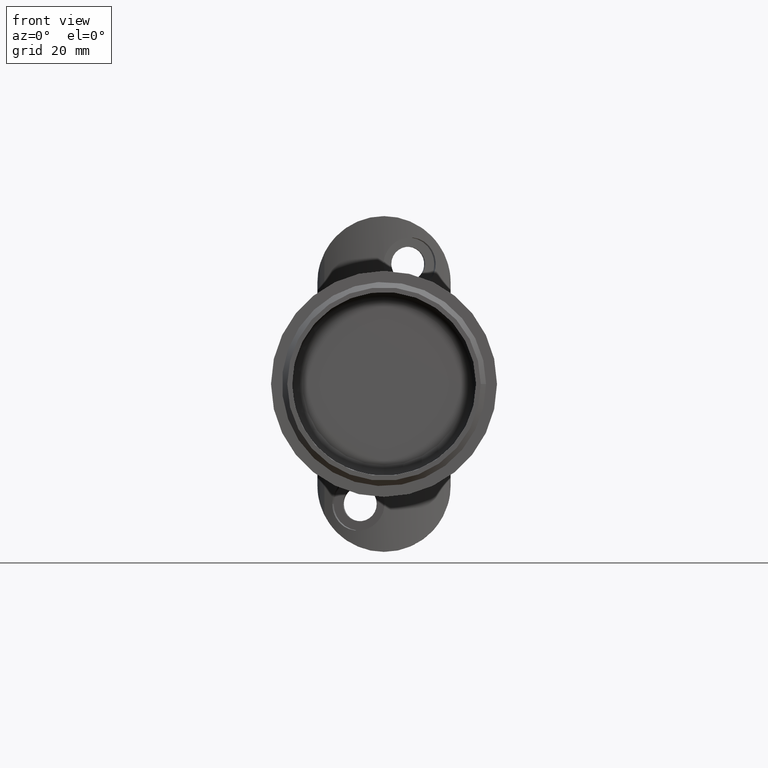
[diagram: clean part render]
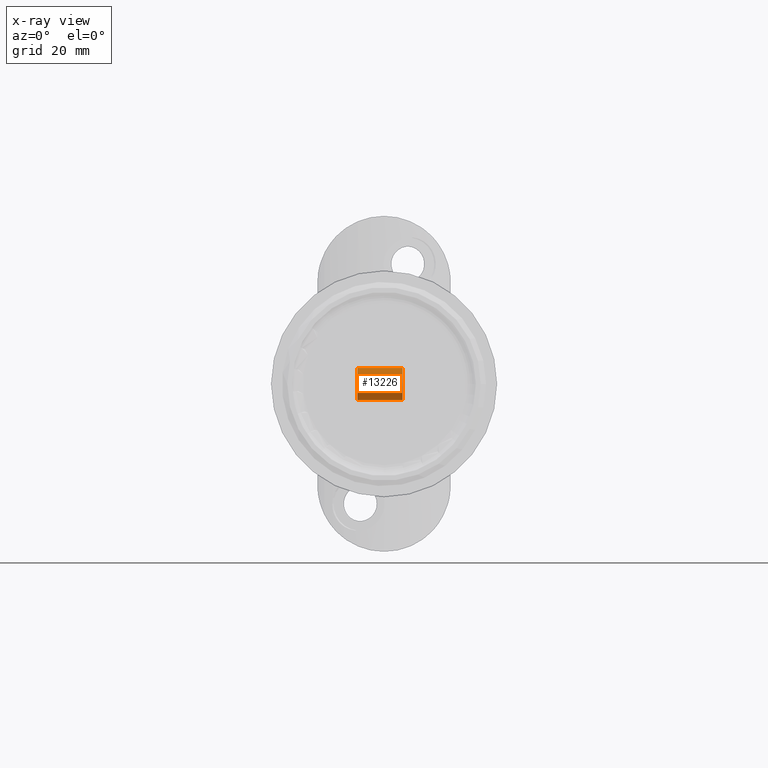
[diagram: x-ray — body ghosted, one internal face saturated and labeled with its STEP entity id]
A machine part, front view, then the same camera in x-ray: the body is ghosted and one INTERNAL B-rep face — a face not visible from any outside direction — is saturated and labeled: STEP entity #13226.
In plain terms, the highlighted cylindrical surface (bore or boss wall) has radius 3 mm, axis along (1, 0, 0).
Its self-contained STEP definition (entity closure, byte-faithful):
#318 = CARTESIAN_POINT ( 'NONE',  ( 0.000000000000000000, 4.299999999999999822, 0.000000000000000000 ) ) ;
#1065 = CIRCLE ( 'NONE', #5008, 3.000000000000100808 ) ;
#1511 = DIRECTION ( 'NONE',  ( 0.000000000000000000, 0.000000000000000000, -1.000000000000000000 ) ) ;
#2544 = CARTESIAN_POINT ( 'NONE',  ( 0.000000000000000000, 12.82269999999999932, -3.000000000000100808 ) ) ;
#2551 = CYLINDRICAL_SURFACE ( 'NONE', #12751, 3.000000000000102141 ) ;
#3356 = DIRECTION ( 'NONE',  ( 0.000000000000000000, -1.000000000000000000, 0.000000000000000000 ) ) ;
#4033 = FACE_OUTER_BOUND ( 'NONE', #13366, .T. ) ;
#4571 = VERTEX_POINT ( 'NONE', #2544 ) ;
#5008 = AXIS2_PLACEMENT_3D ( 'NONE', #9037, #3356, #1511 ) ;
#5281 = CARTESIAN_POINT ( 'NONE',  ( 0.000000000000000000, 0.000000000000000000, 0.000000000000000000 ) ) ;
#5817 = AXIS2_PLACEMENT_3D ( 'NONE', #318, #12272, #13256 ) ;
#6078 = FACE_OUTER_BOUND ( 'NONE', #14808, .T. ) ;
#6392 = DIRECTION ( 'NONE',  ( 0.000000000000000000, 0.000000000000000000, -1.000000000000000000 ) ) ;
#9037 = CARTESIAN_POINT ( 'NONE',  ( 0.000000000000000000, 12.82269999999999932, 0.000000000000000000 ) ) ;
#11296 = DIRECTION ( 'NONE',  ( 0.000000000000000000, -1.000000000000000000, 0.000000000000000000 ) ) ;
#11897 = CIRCLE ( 'NONE', #5817, 3.000000000000102141 ) ;
#12272 = DIRECTION ( 'NONE',  ( -0.000000000000000000, 1.000000000000000000, -0.000000000000000000 ) ) ;
#12614 = VERTEX_POINT ( 'NONE', #12857 ) ;
#12651 = ORIENTED_EDGE ( 'NONE', *, *, #13311, .T. ) ;
#12698 = EDGE_CURVE ( 'NONE', #12614, #12614, #11897, .T. ) ;
#12751 = AXIS2_PLACEMENT_3D ( 'NONE', #5281, #11296, #6392 ) ;
#12857 = CARTESIAN_POINT ( 'NONE',  ( 0.000000000000000000, 4.299999999999999822, -3.000000000000102141 ) ) ;
#13226 = ADVANCED_FACE ( 'NONE', ( #6078, #4033 ), #2551, .T. ) ;
#13256 = DIRECTION ( 'NONE',  ( 0.000000000000000000, 0.000000000000000000, -1.000000000000000000 ) ) ;
#13311 = EDGE_CURVE ( 'NONE', #4571, #4571, #1065, .T. ) ;
#13366 = EDGE_LOOP ( 'NONE', ( #12651 ) ) ;
#13982 = ORIENTED_EDGE ( 'NONE', *, *, #12698, .T. ) ;
#14808 = EDGE_LOOP ( 'NONE', ( #13982 ) ) ;